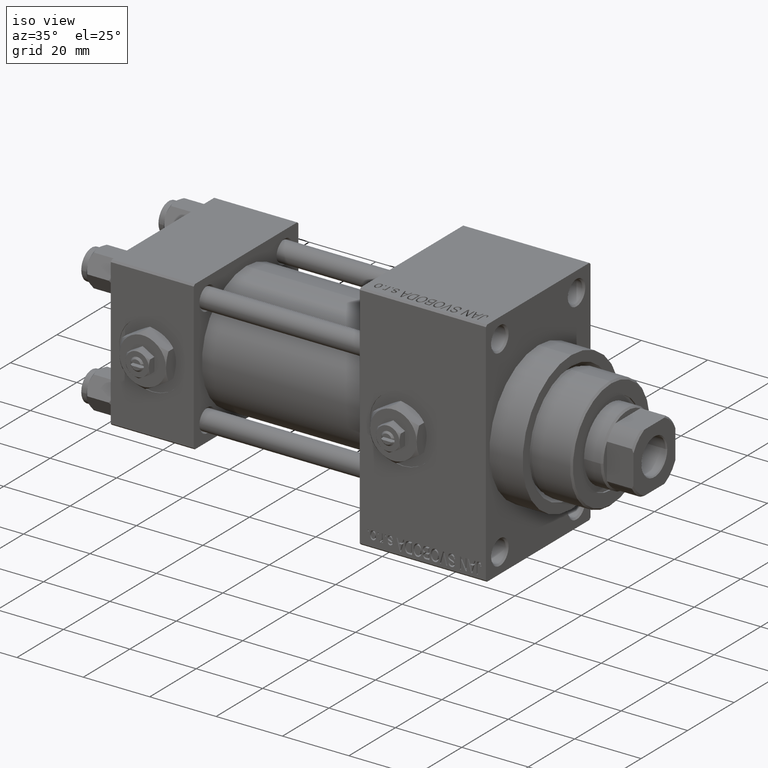
[diagram: clean part render]
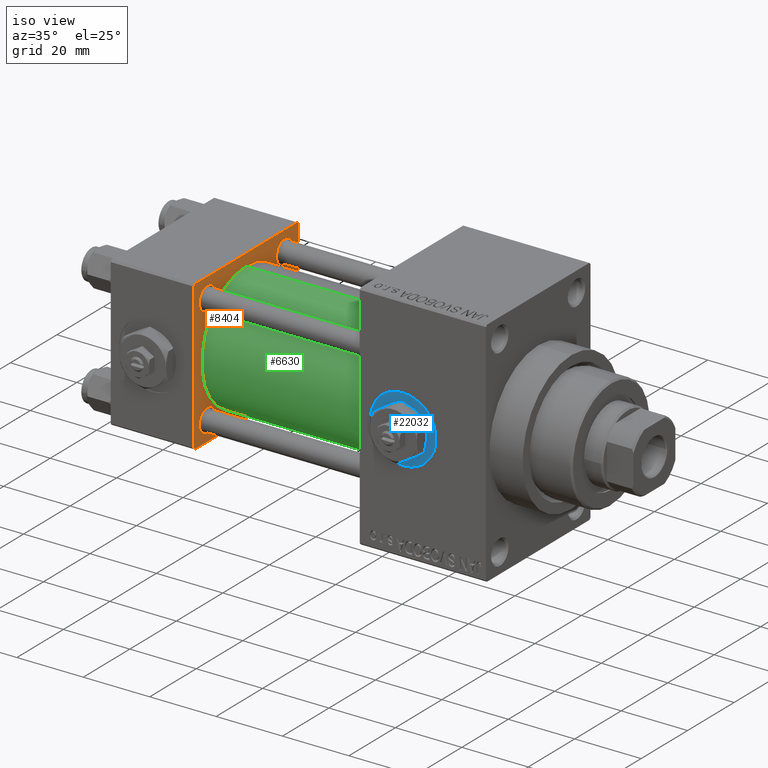
[diagram: same view with three faces highlighted in distinct colors, each labeled with its STEP entity id]
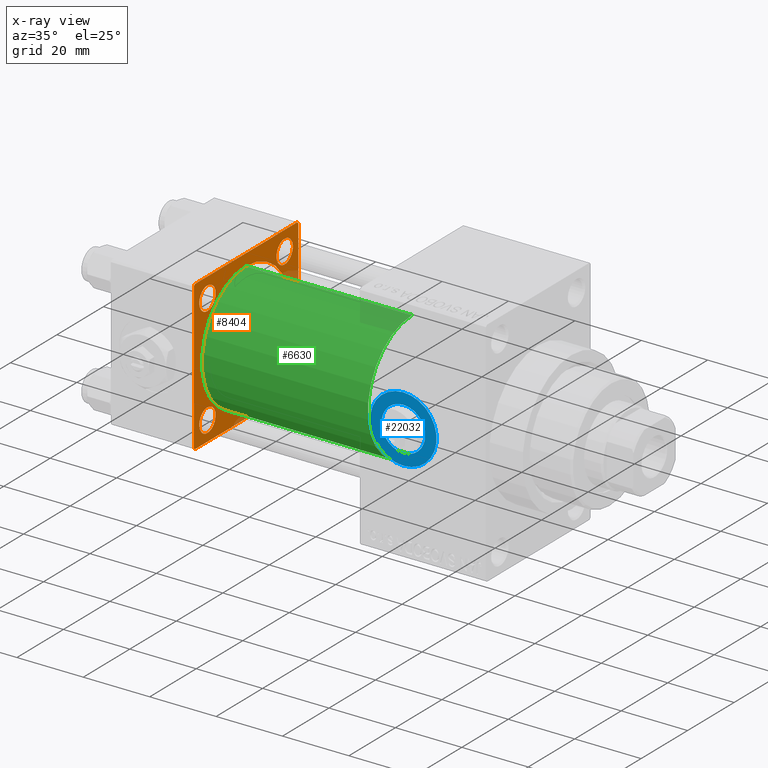
[diagram: x-ray of the same camera — body ghosted, the three highlighted faces saturated]
A machine part, iso view with three faces highlighted in distinct colors.
The next image is the same camera in x-ray (body ghosted, the three faces saturated) — at least one of them is partly hidden behind the body in this view.
Their STEP definitions:

[orange] entity #8404 — the highlighted planar face has unit normal (-1, 0, 0).
#95 = ORIENTED_EDGE ( 'NONE', *, *, #17419, .F. ) ;
#529 = EDGE_CURVE ( 'NONE', #28978, #3607, #12270, .T. ) ;
#866 = CARTESIAN_POINT ( 'NONE',  ( 25.00000000000000000, -16.59999999999999076, -13.09999999999999076 ) ) ;
#1822 = EDGE_LOOP ( 'NONE', ( #95, #47738 ) ) ;
#2137 = DIRECTION ( 'NONE',  ( 1.000000000000000000, -0.000000000000000000, 0.000000000000000000 ) ) ;
#3537 = AXIS2_PLACEMENT_3D ( 'NONE', #15052, #30203, #48829 ) ;
#3607 = VERTEX_POINT ( 'NONE', #9016 ) ;
#3872 = CARTESIAN_POINT ( 'NONE',  ( 25.00000000000000000, -2.602085213965210642E-15, 0.000000000000000000 ) ) ;
#3921 = EDGE_CURVE ( 'NONE', #4428, #18360, #6323, .T. ) ;
#4109 = CARTESIAN_POINT ( 'NONE',  ( 25.00000000000000000, 22.50000000000000000, -21.99999999999998224 ) ) ;
#4144 = EDGE_CURVE ( 'NONE', #8729, #42975, #35671, .T. ) ;
#4428 = VERTEX_POINT ( 'NONE', #39454 ) ;
#4543 = ORIENTED_EDGE ( 'NONE', *, *, #8112, .T. ) ;
#4770 = DIRECTION ( 'NONE',  ( -1.000000000000000000, 0.000000000000000000, -0.000000000000000000 ) ) ;
#5303 = LINE ( 'NONE', #27668, #37557 ) ;
#5314 = EDGE_CURVE ( 'NONE', #36446, #3607, #20349, .T. ) ;
#5972 = CARTESIAN_POINT ( 'NONE',  ( 25.00000000000000000, -16.59999999999999076, -16.60000000000000853 ) ) ;
#6323 = CIRCLE ( 'NONE', #43612, 3.500000000000003109 ) ;
#6465 = DIRECTION ( 'NONE',  ( -1.000000000000000000, 0.000000000000000000, -0.000000000000000000 ) ) ;
#6476 = AXIS2_PLACEMENT_3D ( 'NONE', #32683, #2137, #48076 ) ;
#6759 = ORIENTED_EDGE ( 'NONE', *, *, #19298, .T. ) ;
#7589 = ORIENTED_EDGE ( 'NONE', *, *, #3921, .T. ) ;
#7830 = CARTESIAN_POINT ( 'NONE',  ( 25.00000000000000000, -2.752562955852396712E-16, -19.00000000000000000 ) ) ;
#8112 = EDGE_CURVE ( 'NONE', #42975, #8729, #29244, .T. ) ;
#8349 = EDGE_LOOP ( 'NONE', ( #7589, #45708 ) ) ;
#8396 = EDGE_CURVE ( 'NONE', #19458, #9045, #46744, .T. ) ;
#8404 = ADVANCED_FACE ( 'NONE', ( #16134, #41980, #31276, #16377, #15639, #42720 ), #8667, .F. ) ;
#8429 = DIRECTION ( 'NONE',  ( -1.000000000000000000, 0.000000000000000000, -0.000000000000000000 ) ) ;
#8667 = PLANE ( 'NONE',  #45131 ) ;
#8729 = VERTEX_POINT ( 'NONE', #36630 ) ;
#9016 = CARTESIAN_POINT ( 'NONE',  ( 25.00000000000000000, 22.50000000000000000, -21.99999999999996803 ) ) ;
#9045 = VERTEX_POINT ( 'NONE', #29072 ) ;
#9166 = DIRECTION ( 'NONE',  ( -1.000000000000000000, 0.000000000000000000, -0.000000000000000000 ) ) ;
#9388 = CARTESIAN_POINT ( 'NONE',  ( 25.00000000000000000, 21.99999999999999289, 22.50000000000000355 ) ) ;
#9589 = VECTOR ( 'NONE', #28423, 1000.000000000000000 ) ;
#9735 = DIRECTION ( 'NONE',  ( 0.000000000000000000, 0.7071067811865426878, -0.7071067811865524577 ) ) ;
#9859 = EDGE_LOOP ( 'NONE', ( #26128, #37322, #15005, #20935, #6759, #11027, #42863, #42612 ) ) ;
#10239 = VERTEX_POINT ( 'NONE', #31130 ) ;
#10245 = CARTESIAN_POINT ( 'NONE',  ( 25.00000000000000000, 22.50000000000000000, -22.49999999999999645 ) ) ;
#11027 = ORIENTED_EDGE ( 'NONE', *, *, #25972, .T. ) ;
#11268 = EDGE_LOOP ( 'NONE', ( #21254, #17718 ) ) ;
#11731 = ORIENTED_EDGE ( 'NONE', *, *, #8396, .T. ) ;
#12270 = LINE ( 'NONE', #4109, #15612 ) ;
#12344 = CARTESIAN_POINT ( 'NONE',  ( 25.00000000000000000, 16.59999999999999787, -13.10000000000000142 ) ) ;
#12432 = CARTESIAN_POINT ( 'NONE',  ( 25.00000000000000000, -16.59999999999999076, 16.60000000000000853 ) ) ;
#12623 = AXIS2_PLACEMENT_3D ( 'NONE', #38230, #8429, #26811 ) ;
#13442 = VECTOR ( 'NONE', #37695, 1000.000000000000114 ) ;
#15005 = ORIENTED_EDGE ( 'NONE', *, *, #5314, .F. ) ;
#15052 = CARTESIAN_POINT ( 'NONE',  ( 25.00000000000000000, 16.59999999999999787, -16.60000000000000497 ) ) ;
#15612 = VECTOR ( 'NONE', #30670, 1000.000000000000000 ) ;
#15639 = FACE_BOUND ( 'NONE', #1822, .T. ) ;
#15870 = CARTESIAN_POINT ( 'NONE',  ( 25.00000000000000000, 22.50000000000000000, 22.50000000000000355 ) ) ;
#16134 = FACE_BOUND ( 'NONE', #25729, .T. ) ;
#16377 = FACE_BOUND ( 'NONE', #8349, .T. ) ;
#16701 = EDGE_CURVE ( 'NONE', #28978, #46216, #28892, .T. ) ;
#16964 = EDGE_CURVE ( 'NONE', #43180, #27979, #18358, .T. ) ;
#17112 = CIRCLE ( 'NONE', #42517, 3.500000000000003109 ) ;
#17419 = EDGE_CURVE ( 'NONE', #38758, #41936, #48502, .T. ) ;
#17718 = ORIENTED_EDGE ( 'NONE', *, *, #16964, .T. ) ;
#18358 = CIRCLE ( 'NONE', #26299, 3.500000000000003109 ) ;
#18360 = VERTEX_POINT ( 'NONE', #27960 ) ;
#18970 = CIRCLE ( 'NONE', #25289, 3.500000000000020428 ) ;
#19298 = EDGE_CURVE ( 'NONE', #32641, #23856, #40772, .T. ) ;
#19458 = VERTEX_POINT ( 'NONE', #37158 ) ;
#19567 = LINE ( 'NONE', #45908, #13442 ) ;
#19887 = DIRECTION ( 'NONE',  ( -1.000000000000000000, 0.000000000000000000, -0.000000000000000000 ) ) ;
#20102 = CARTESIAN_POINT ( 'NONE',  ( 25.00000000000000000, 0.000000000000000000, 0.000000000000000000 ) ) ;
#20349 = LINE ( 'NONE', #39949, #32321 ) ;
#20603 = CARTESIAN_POINT ( 'NONE',  ( 25.00000000000000000, 16.59999999999999787, -16.60000000000000497 ) ) ;
#20935 = ORIENTED_EDGE ( 'NONE', *, *, #49109, .T. ) ;
#21162 = DIRECTION ( 'NONE',  ( -1.000000000000000000, 0.000000000000000000, -0.000000000000000000 ) ) ;
#21254 = ORIENTED_EDGE ( 'NONE', *, *, #28142, .T. ) ;
#21280 = CARTESIAN_POINT ( 'NONE',  ( 25.00000000000000000, 22.50000000000000000, 21.99999999999999645 ) ) ;
#21637 = CARTESIAN_POINT ( 'NONE',  ( 25.00000000000000000, 16.59999999999999787, 16.60000000000000497 ) ) ;
#22337 = EDGE_CURVE ( 'NONE', #10239, #38732, #5303, .T. ) ;
#22411 = EDGE_CURVE ( 'NONE', #38732, #46216, #47489, .T. ) ;
#22457 = LINE ( 'NONE', #38576, #30557 ) ;
#22529 = CARTESIAN_POINT ( 'NONE',  ( 25.00000000000000000, -21.99999999999997868, 22.50000000000000000 ) ) ;
#23856 = VERTEX_POINT ( 'NONE', #22529 ) ;
#24665 = ORIENTED_EDGE ( 'NONE', *, *, #44856, .T. ) ;
#24761 = VECTOR ( 'NONE', #36786, 1000.000000000000000 ) ;
#25289 = AXIS2_PLACEMENT_3D ( 'NONE', #12432, #19887, #46941 ) ;
#25729 = EDGE_LOOP ( 'NONE', ( #40086, #4543 ) ) ;
#25972 = EDGE_CURVE ( 'NONE', #23856, #10239, #22457, .T. ) ;
#26128 = ORIENTED_EDGE ( 'NONE', *, *, #16701, .F. ) ;
#26210 = DIRECTION ( 'NONE',  ( 1.000000000000000000, -0.000000000000000000, 0.000000000000000000 ) ) ;
#26299 = AXIS2_PLACEMENT_3D ( 'NONE', #20603, #9166, #35736 ) ;
#26317 = DIRECTION ( 'NONE',  ( 0.000000000000000000, 0.000000000000000000, 1.000000000000000000 ) ) ;
#26811 = DIRECTION ( 'NONE',  ( 0.000000000000000000, 0.000000000000000000, 1.000000000000000000 ) ) ;
#26842 = AXIS2_PLACEMENT_3D ( 'NONE', #3872, #26210, #45591 ) ;
#27668 = CARTESIAN_POINT ( 'NONE',  ( 25.00000000000000000, -22.50000000000000000, 22.50000000000000000 ) ) ;
#27960 = CARTESIAN_POINT ( 'NONE',  ( 25.00000000000000000, 16.59999999999999787, 20.10000000000000853 ) ) ;
#27979 = VERTEX_POINT ( 'NONE', #28011 ) ;
#28011 = CARTESIAN_POINT ( 'NONE',  ( 25.00000000000000000, 16.59999999999999787, -20.10000000000000853 ) ) ;
#28142 = EDGE_CURVE ( 'NONE', #27979, #43180, #28145, .T. ) ;
#28145 = CIRCLE ( 'NONE', #3537, 3.500000000000003109 ) ;
#28423 = DIRECTION ( 'NONE',  ( 0.000000000000000000, -1.000000000000000000, -2.312964634635742957E-16 ) ) ;
#28637 = CARTESIAN_POINT ( 'NONE',  ( 25.00000000000000000, -21.99999999999998579, -22.50000000000000711 ) ) ;
#28820 = DIRECTION ( 'NONE',  ( 0.000000000000000000, 0.000000000000000000, 1.000000000000000000 ) ) ;
#28892 = LINE ( 'NONE', #10245, #9589 ) ;
#28978 = VERTEX_POINT ( 'NONE', #34908 ) ;
#29072 = CARTESIAN_POINT ( 'NONE',  ( 25.00000000000000000, -16.59999999999999076, 13.09999999999998721 ) ) ;
#29244 = CIRCLE ( 'NONE', #48275, 3.500000000000016875 ) ;
#29297 = CARTESIAN_POINT ( 'NONE',  ( 25.00000000000000000, -2.602085213965210642E-15, 19.00000000000000000 ) ) ;
#29363 = CARTESIAN_POINT ( 'NONE',  ( 25.00000000000000000, -21.99999999999997158, -22.50000000000000711 ) ) ;
#29554 = CARTESIAN_POINT ( 'NONE',  ( 25.00000000000000000, -16.59999999999999076, -16.60000000000000853 ) ) ;
#30203 = DIRECTION ( 'NONE',  ( -1.000000000000000000, 0.000000000000000000, -0.000000000000000000 ) ) ;
#30557 = VECTOR ( 'NONE', #41581, 999.9999999999998863 ) ;
#30670 = DIRECTION ( 'NONE',  ( -0.000000000000000000, 0.7071067811865426878, 0.7071067811865524577 ) ) ;
#30826 = EDGE_CURVE ( 'NONE', #18360, #4428, #17112, .T. ) ;
#31088 = DIRECTION ( 'NONE',  ( 0.000000000000000000, 0.000000000000000000, 1.000000000000000000 ) ) ;
#31130 = CARTESIAN_POINT ( 'NONE',  ( 25.00000000000000000, -22.50000000000000000, 22.00000000000000000 ) ) ;
#31276 = FACE_BOUND ( 'NONE', #39923, .T. ) ;
#31524 = DIRECTION ( 'NONE',  ( -1.000000000000000000, 0.000000000000000000, -0.000000000000000000 ) ) ;
#31765 = DIRECTION ( 'NONE',  ( 0.000000000000000000, 0.000000000000000000, -1.000000000000000000 ) ) ;
#32321 = VECTOR ( 'NONE', #31765, 1000.000000000000000 ) ;
#32641 = VERTEX_POINT ( 'NONE', #9388 ) ;
#32683 = CARTESIAN_POINT ( 'NONE',  ( 25.00000000000000000, -2.602085213965210642E-15, 0.000000000000000000 ) ) ;
#34612 = DIRECTION ( 'NONE',  ( 0.000000000000000000, 0.000000000000000000, -1.000000000000000000 ) ) ;
#34875 = AXIS2_PLACEMENT_3D ( 'NONE', #29554, #37480, #26317 ) ;
#34908 = CARTESIAN_POINT ( 'NONE',  ( 25.00000000000000000, 21.99999999999999289, -22.49999999999999645 ) ) ;
#35671 = CIRCLE ( 'NONE', #34875, 3.500000000000016875 ) ;
#35736 = DIRECTION ( 'NONE',  ( 0.000000000000000000, 0.000000000000000000, 1.000000000000000000 ) ) ;
#36287 = DIRECTION ( 'NONE',  ( 0.000000000000000000, 0.000000000000000000, 1.000000000000000000 ) ) ;
#36446 = VERTEX_POINT ( 'NONE', #21280 ) ;
#36630 = CARTESIAN_POINT ( 'NONE',  ( 25.00000000000000000, -16.59999999999999076, -20.10000000000002274 ) ) ;
#36786 = DIRECTION ( 'NONE',  ( 0.000000000000000000, -1.000000000000000000, -7.709882115452476934E-17 ) ) ;
#37158 = CARTESIAN_POINT ( 'NONE',  ( 25.00000000000000000, -16.59999999999999076, 20.10000000000002629 ) ) ;
#37322 = ORIENTED_EDGE ( 'NONE', *, *, #529, .T. ) ;
#37480 = DIRECTION ( 'NONE',  ( -1.000000000000000000, 0.000000000000000000, -0.000000000000000000 ) ) ;
#37557 = VECTOR ( 'NONE', #34612, 1000.000000000000000 ) ;
#37695 = DIRECTION ( 'NONE',  ( 0.000000000000000000, -0.7071067811865474617, 0.7071067811865474617 ) ) ;
#37981 = DIRECTION ( 'NONE',  ( -0.000000000000000000, 0.000000000000000000, 1.000000000000000000 ) ) ;
#38030 = CARTESIAN_POINT ( 'NONE',  ( 25.00000000000000000, 16.59999999999999787, 16.60000000000000497 ) ) ;
#38230 = CARTESIAN_POINT ( 'NONE',  ( 25.00000000000000000, -16.59999999999999076, 16.60000000000000853 ) ) ;
#38576 = CARTESIAN_POINT ( 'NONE',  ( 25.00000000000000000, -22.50000000000000000, 22.00000000000000000 ) ) ;
#38712 = CIRCLE ( 'NONE', #26842, 19.00000000000000000 ) ;
#38732 = VERTEX_POINT ( 'NONE', #48912 ) ;
#38758 = VERTEX_POINT ( 'NONE', #29297 ) ;
#39454 = CARTESIAN_POINT ( 'NONE',  ( 25.00000000000000000, 16.59999999999999787, 13.10000000000000142 ) ) ;
#39923 = EDGE_LOOP ( 'NONE', ( #24665, #11731 ) ) ;
#39949 = CARTESIAN_POINT ( 'NONE',  ( 25.00000000000000000, 22.50000000000000000, 22.50000000000000355 ) ) ;
#40086 = ORIENTED_EDGE ( 'NONE', *, *, #4144, .T. ) ;
#40772 = LINE ( 'NONE', #15870, #24761 ) ;
#41581 = DIRECTION ( 'NONE',  ( -0.000000000000000000, -0.7071067811865525687, -0.7071067811865425767 ) ) ;
#41936 = VERTEX_POINT ( 'NONE', #7830 ) ;
#41980 = FACE_BOUND ( 'NONE', #11268, .T. ) ;
#42517 = AXIS2_PLACEMENT_3D ( 'NONE', #21637, #21162, #36287 ) ;
#42612 = ORIENTED_EDGE ( 'NONE', *, *, #22411, .T. ) ;
#42720 = FACE_OUTER_BOUND ( 'NONE', #9859, .T. ) ;
#42838 = EDGE_CURVE ( 'NONE', #41936, #38758, #38712, .T. ) ;
#42863 = ORIENTED_EDGE ( 'NONE', *, *, #22337, .T. ) ;
#42975 = VERTEX_POINT ( 'NONE', #866 ) ;
#43180 = VERTEX_POINT ( 'NONE', #12344 ) ;
#43612 = AXIS2_PLACEMENT_3D ( 'NONE', #38030, #4770, #31088 ) ;
#44733 = VECTOR ( 'NONE', #9735, 1000.000000000000000 ) ;
#44856 = EDGE_CURVE ( 'NONE', #9045, #19458, #18970, .T. ) ;
#45131 = AXIS2_PLACEMENT_3D ( 'NONE', #20102, #31524, #37981 ) ;
#45591 = DIRECTION ( 'NONE',  ( 0.000000000000000000, 0.000000000000000000, 1.000000000000000000 ) ) ;
#45708 = ORIENTED_EDGE ( 'NONE', *, *, #30826, .T. ) ;
#45908 = CARTESIAN_POINT ( 'NONE',  ( 25.00000000000000000, 21.99999999999999289, 22.50000000000000355 ) ) ;
#46216 = VERTEX_POINT ( 'NONE', #29363 ) ;
#46744 = CIRCLE ( 'NONE', #12623, 3.500000000000020428 ) ;
#46941 = DIRECTION ( 'NONE',  ( 0.000000000000000000, 0.000000000000000000, 1.000000000000000000 ) ) ;
#47489 = LINE ( 'NONE', #28637, #44733 ) ;
#47738 = ORIENTED_EDGE ( 'NONE', *, *, #42838, .F. ) ;
#48076 = DIRECTION ( 'NONE',  ( 0.000000000000000000, 0.000000000000000000, 1.000000000000000000 ) ) ;
#48275 = AXIS2_PLACEMENT_3D ( 'NONE', #5972, #6465, #28820 ) ;
#48502 = CIRCLE ( 'NONE', #6476, 19.00000000000000000 ) ;
#48829 = DIRECTION ( 'NONE',  ( 0.000000000000000000, 0.000000000000000000, 1.000000000000000000 ) ) ;
#48912 = CARTESIAN_POINT ( 'NONE',  ( 25.00000000000000000, -22.50000000000000000, -21.99999999999997158 ) ) ;
#49109 = EDGE_CURVE ( 'NONE', #36446, #32641, #19567, .T. ) ;

[blue] entity #22032 — the highlighted planar face has unit normal (0, -1, -0).
#1130 = VERTEX_POINT ( 'NONE', #7905 ) ;
#1528 = ORIENTED_EDGE ( 'NONE', *, *, #3130, .T. ) ;
#2466 = FACE_OUTER_BOUND ( 'NONE', #17167, .T. ) ;
#2814 = AXIS2_PLACEMENT_3D ( 'NONE', #11557, #15297, #30438 ) ;
#3130 = EDGE_CURVE ( 'NONE', #48604, #1130, #3808, .T. ) ;
#3716 = ORIENTED_EDGE ( 'NONE', *, *, #47553, .F. ) ;
#3808 = CIRCLE ( 'NONE', #4633, 9.999999999999994671 ) ;
#4633 = AXIS2_PLACEMENT_3D ( 'NONE', #38213, #26056, #26537 ) ;
#6893 = DIRECTION ( 'NONE',  ( 0.000000000000000000, 0.000000000000000000, -1.000000000000000000 ) ) ;
#7190 = PLANE ( 'NONE',  #13768 ) ;
#7561 = ORIENTED_EDGE ( 'NONE', *, *, #26979, .F. ) ;
#7905 = CARTESIAN_POINT ( 'NONE',  ( 88.00000000000001421, -22.30000000000000426, -9.999999999999994671 ) ) ;
#7922 = EDGE_CURVE ( 'NONE', #1130, #48604, #24483, .T. ) ;
#11153 = DIRECTION ( 'NONE',  ( 0.000000000000000000, -1.000000000000000000, -8.673617379884036705E-17 ) ) ;
#11557 = CARTESIAN_POINT ( 'NONE',  ( 88.00000000000001421, -22.30000000000000426, 1.734723475976808635E-17 ) ) ;
#13768 = AXIS2_PLACEMENT_3D ( 'NONE', #29545, #11153, #22333 ) ;
#14388 = FACE_BOUND ( 'NONE', #27446, .T. ) ;
#15297 = DIRECTION ( 'NONE',  ( 0.000000000000000000, -1.000000000000000000, -8.673617379884036705E-17 ) ) ;
#17167 = EDGE_LOOP ( 'NONE', ( #43608, #1528 ) ) ;
#20359 = CARTESIAN_POINT ( 'NONE',  ( 88.00000000000001421, -22.30000000000000426, 6.580000000000002736 ) ) ;
#20489 = CARTESIAN_POINT ( 'NONE',  ( 88.00000000000001421, -22.30000000000000426, -6.580000000000002736 ) ) ;
#22032 = ADVANCED_FACE ( 'NONE', ( #14388, #2466 ), #7190, .T. ) ;
#22333 = DIRECTION ( 'NONE',  ( 0.000000000000000000, 8.673617379884036705E-17, -1.000000000000000000 ) ) ;
#23627 = DIRECTION ( 'NONE',  ( 0.000000000000000000, 0.000000000000000000, -1.000000000000000000 ) ) ;
#24483 = CIRCLE ( 'NONE', #37165, 9.999999999999994671 ) ;
#26056 = DIRECTION ( 'NONE',  ( 0.000000000000000000, -1.000000000000000000, -8.673617379884036705E-17 ) ) ;
#26537 = DIRECTION ( 'NONE',  ( 0.000000000000000000, 0.000000000000000000, -1.000000000000000000 ) ) ;
#26979 = EDGE_CURVE ( 'NONE', #44334, #42329, #46447, .T. ) ;
#27446 = EDGE_LOOP ( 'NONE', ( #7561, #3716 ) ) ;
#27825 = AXIS2_PLACEMENT_3D ( 'NONE', #41412, #37669, #6893 ) ;
#29545 = CARTESIAN_POINT ( 'NONE',  ( 88.00000000000001421, -22.30000000000000426, 1.734723475976807403E-17 ) ) ;
#30438 = DIRECTION ( 'NONE',  ( 0.000000000000000000, 0.000000000000000000, -1.000000000000000000 ) ) ;
#34086 = CARTESIAN_POINT ( 'NONE',  ( 88.00000000000001421, -22.30000000000000426, 9.999999999999994671 ) ) ;
#34141 = CIRCLE ( 'NONE', #27825, 6.580000000000002736 ) ;
#35064 = DIRECTION ( 'NONE',  ( 0.000000000000000000, -1.000000000000000000, -8.673617379884036705E-17 ) ) ;
#37165 = AXIS2_PLACEMENT_3D ( 'NONE', #46496, #35064, #23627 ) ;
#37669 = DIRECTION ( 'NONE',  ( 0.000000000000000000, -1.000000000000000000, -8.673617379884036705E-17 ) ) ;
#38213 = CARTESIAN_POINT ( 'NONE',  ( 88.00000000000001421, -22.30000000000000426, 1.734723475976807403E-17 ) ) ;
#41412 = CARTESIAN_POINT ( 'NONE',  ( 88.00000000000001421, -22.30000000000000426, 1.734723475976808635E-17 ) ) ;
#42329 = VERTEX_POINT ( 'NONE', #20359 ) ;
#43608 = ORIENTED_EDGE ( 'NONE', *, *, #7922, .T. ) ;
#44334 = VERTEX_POINT ( 'NONE', #20489 ) ;
#46447 = CIRCLE ( 'NONE', #2814, 6.580000000000002736 ) ;
#46496 = CARTESIAN_POINT ( 'NONE',  ( 88.00000000000001421, -22.30000000000000426, 1.734723475976807403E-17 ) ) ;
#47553 = EDGE_CURVE ( 'NONE', #42329, #44334, #34141, .T. ) ;
#48604 = VERTEX_POINT ( 'NONE', #34086 ) ;

[green] entity #6630 — the highlighted cylindrical surface (partial cylindrical patch) has radius 19 mm, axis along (-1, -0, -0).
#530 = CARTESIAN_POINT ( 'NONE',  ( 75.00000000000001421, -2.602085213965210642E-15, 19.00000000000000000 ) ) ;
#1564 = DIRECTION ( 'NONE',  ( -1.000000000000000000, -0.000000000000000000, -0.000000000000000000 ) ) ;
#1807 = CARTESIAN_POINT ( 'NONE',  ( 75.00000000000001421, -2.602085213965210642E-15, 0.000000000000000000 ) ) ;
#2137 = DIRECTION ( 'NONE',  ( 1.000000000000000000, -0.000000000000000000, 0.000000000000000000 ) ) ;
#2532 = FACE_OUTER_BOUND ( 'NONE', #11043, .T. ) ;
#4260 = CARTESIAN_POINT ( 'NONE',  ( 75.00000000000001421, -2.752562955852396712E-16, -19.00000000000000000 ) ) ;
#5104 = ORIENTED_EDGE ( 'NONE', *, *, #38423, .T. ) ;
#5542 = CYLINDRICAL_SURFACE ( 'NONE', #19681, 19.00000000000000000 ) ;
#6476 = AXIS2_PLACEMENT_3D ( 'NONE', #32683, #2137, #48076 ) ;
#6630 = ADVANCED_FACE ( 'NONE', ( #2532 ), #5542, .T. ) ;
#7249 = DIRECTION ( 'NONE',  ( 1.000000000000000000, 0.000000000000000000, 0.000000000000000000 ) ) ;
#7336 = VECTOR ( 'NONE', #44819, 1000.000000000000000 ) ;
#7830 = CARTESIAN_POINT ( 'NONE',  ( 25.00000000000000000, -2.752562955852396712E-16, -19.00000000000000000 ) ) ;
#8228 = CARTESIAN_POINT ( 'NONE',  ( 75.00000000000001421, -2.602085213965210642E-15, 0.000000000000000000 ) ) ;
#8454 = VECTOR ( 'NONE', #23614, 1000.000000000000000 ) ;
#11043 = EDGE_LOOP ( 'NONE', ( #38489, #24784, #5104, #39848 ) ) ;
#11528 = LINE ( 'NONE', #29670, #7336 ) ;
#14730 = AXIS2_PLACEMENT_3D ( 'NONE', #8228, #7249, #23357 ) ;
#17419 = EDGE_CURVE ( 'NONE', #38758, #41936, #48502, .T. ) ;
#18026 = VERTEX_POINT ( 'NONE', #4260 ) ;
#19681 = AXIS2_PLACEMENT_3D ( 'NONE', #1807, #1564, #32108 ) ;
#19829 = EDGE_CURVE ( 'NONE', #18026, #41936, #11528, .T. ) ;
#22084 = VERTEX_POINT ( 'NONE', #36113 ) ;
#23357 = DIRECTION ( 'NONE',  ( 0.000000000000000000, 0.000000000000000000, -1.000000000000000000 ) ) ;
#23614 = DIRECTION ( 'NONE',  ( -1.000000000000000000, -0.000000000000000000, -0.000000000000000000 ) ) ;
#24784 = ORIENTED_EDGE ( 'NONE', *, *, #30968, .F. ) ;
#29297 = CARTESIAN_POINT ( 'NONE',  ( 25.00000000000000000, -2.602085213965210642E-15, 19.00000000000000000 ) ) ;
#29670 = CARTESIAN_POINT ( 'NONE',  ( 75.00000000000001421, -2.752562955852396712E-16, -19.00000000000000000 ) ) ;
#30968 = EDGE_CURVE ( 'NONE', #22084, #18026, #41720, .T. ) ;
#32108 = DIRECTION ( 'NONE',  ( 0.000000000000000000, 0.000000000000000000, 1.000000000000000000 ) ) ;
#32683 = CARTESIAN_POINT ( 'NONE',  ( 25.00000000000000000, -2.602085213965210642E-15, 0.000000000000000000 ) ) ;
#36113 = CARTESIAN_POINT ( 'NONE',  ( 75.00000000000001421, -2.602085213965210642E-15, 19.00000000000000000 ) ) ;
#38423 = EDGE_CURVE ( 'NONE', #22084, #38758, #45996, .T. ) ;
#38489 = ORIENTED_EDGE ( 'NONE', *, *, #19829, .F. ) ;
#38758 = VERTEX_POINT ( 'NONE', #29297 ) ;
#39848 = ORIENTED_EDGE ( 'NONE', *, *, #17419, .T. ) ;
#41720 = CIRCLE ( 'NONE', #14730, 19.00000000000000000 ) ;
#41936 = VERTEX_POINT ( 'NONE', #7830 ) ;
#44819 = DIRECTION ( 'NONE',  ( -1.000000000000000000, -0.000000000000000000, -0.000000000000000000 ) ) ;
#45996 = LINE ( 'NONE', #530, #8454 ) ;
#48076 = DIRECTION ( 'NONE',  ( 0.000000000000000000, 0.000000000000000000, 1.000000000000000000 ) ) ;
#48502 = CIRCLE ( 'NONE', #6476, 19.00000000000000000 ) ;